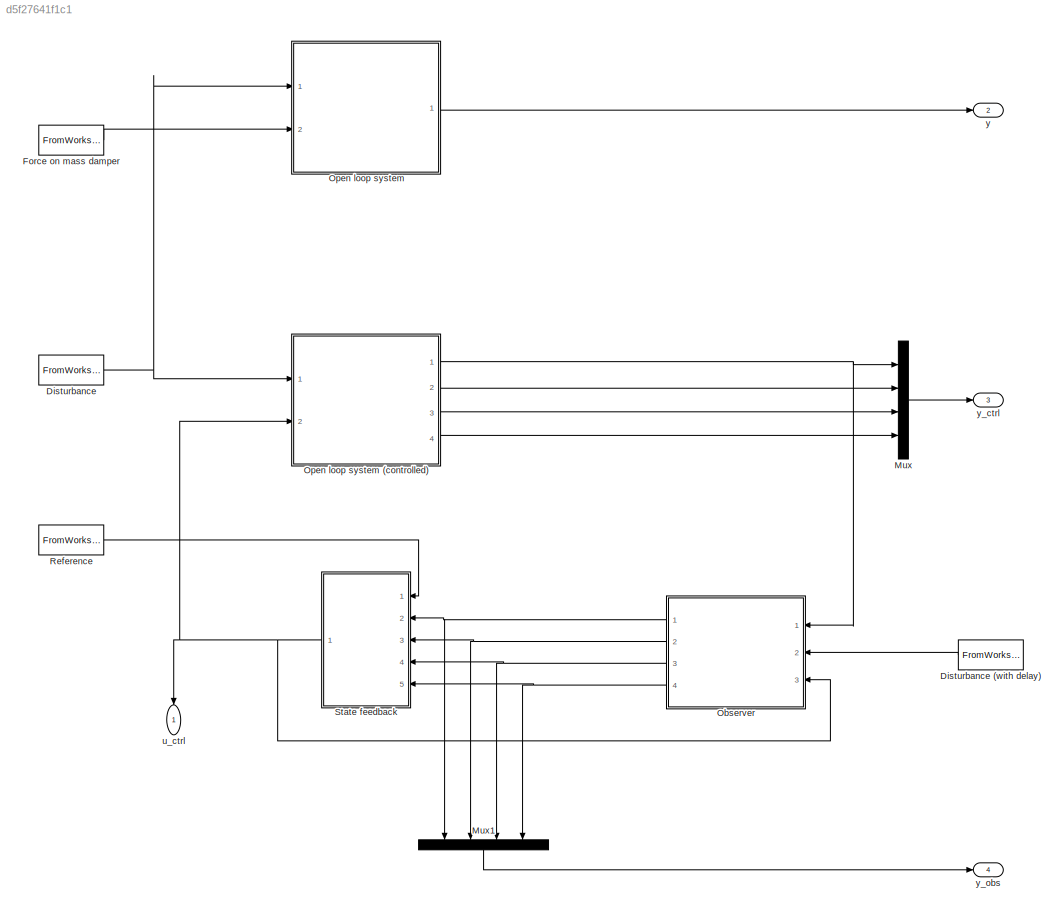
MODEL slx_d5f27641f1c1
KIND model
CONFIG AbsTol = auto
CONFIG EnableMultiTasking = off
CONFIG FixedStep = auto
CONFIG MaxStep = auto
CONFIG MinStep = auto
CONFIG RelTol = 1e-3
CONFIG SampleTimeConstraint = Unconstrained
CONFIG Solver = VariableStepAuto
CONFIG SolverName = VariableStepAuto
CONFIG StartTime = 0.0
CONFIG StopTime = 30.0
BLOCK [FromWorkspace] Disturbance
  SampleTime = 0
  VariableName = d
  ZeroCross = on
BLOCK [FromWorkspace] Disturbance (with delay)
  SampleTime = 0
  VariableName = [d(1:200, 1), zeros(200, 1); d(201:end, 1), d(201:end, 2)]
  ZeroCross = on
BLOCK [FromWorkspace] Force on mass damper
  SampleTime = 0
  VariableName = u
  ZeroCross = on
BLOCK [Mux] Mux
  DisplayOption = bar
  Ports = [4, 1]
BLOCK [Mux] Mux1
  DisplayOption = bar
  Ports = [4, 1]
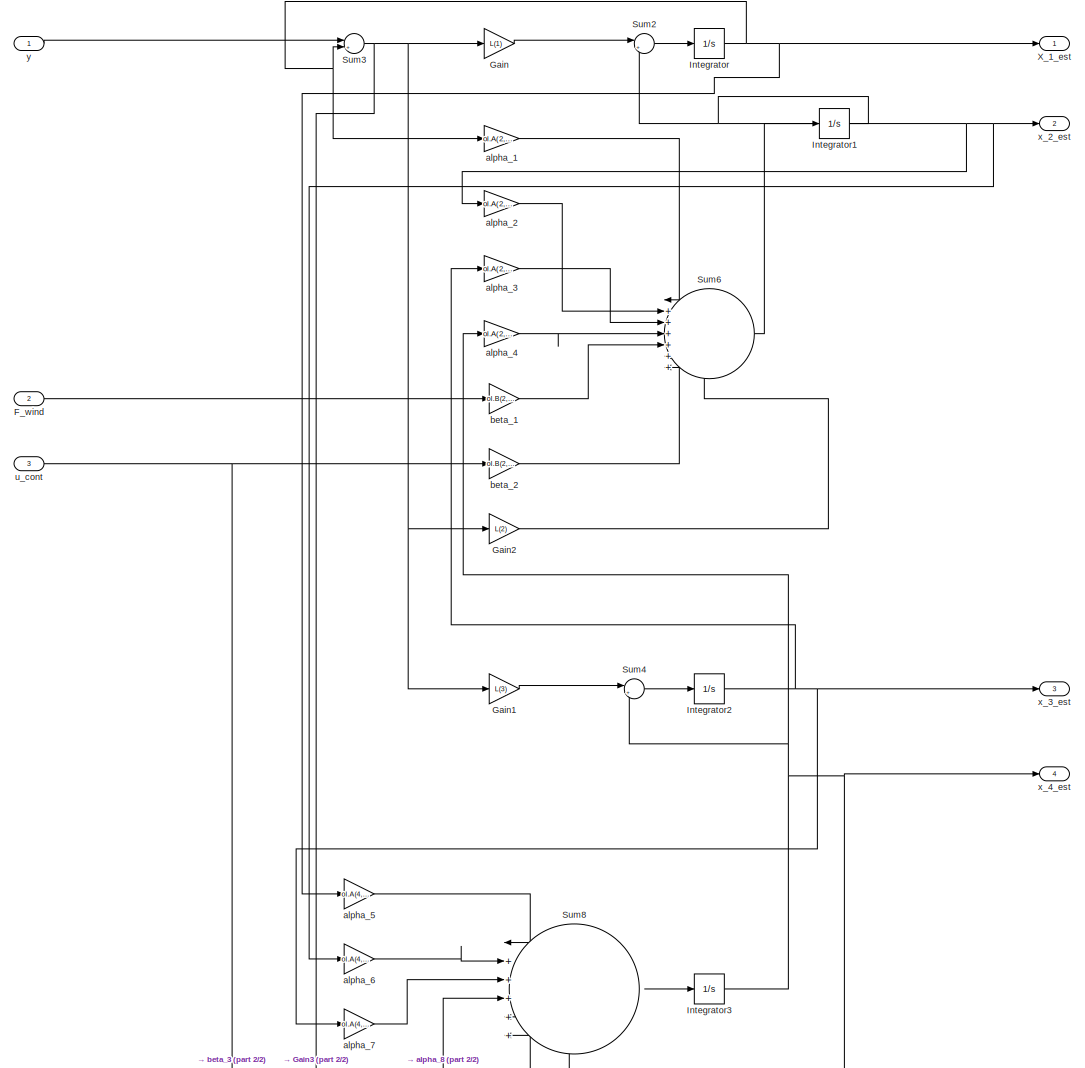
[diagram: Observer - part 1/2, most of the canvas]
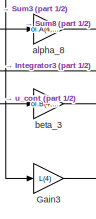
[diagram: Observer - part 2/2, bottom center region]
BLOCK [SubSystem] Observer
  Ports = [3, 4]
  RequestExecContextInheritance = off
BLOCK [Inport] Observer/F_wind
  IconDisplay = Port number
  Port = 2
BLOCK [Gain] Observer/Gain
  Gain = L(1)
  OutDataTypeStr = Inherit: Inherit via internal rule
  ParamDataTypeStr = Inherit: Inherit via internal rule
  SaturateOnIntegerOverflow = off
BLOCK [Gain] Observer/Gain1
  Gain = L(3)
  OutDataTypeStr = Inherit: Inherit via internal rule
  ParamDataTypeStr = Inherit: Inherit via internal rule
  SaturateOnIntegerOverflow = off
BLOCK [Gain] Observer/Gain2
  Gain = L(2)
  OutDataTypeStr = Inherit: Inherit via internal rule
  ParamDataTypeStr = Inherit: Inherit via internal rule
  SaturateOnIntegerOverflow = off
BLOCK [Gain] Observer/Gain3
  Gain = L(4)
  OutDataTypeStr = Inherit: Inherit via internal rule
  ParamDataTypeStr = Inherit: Inherit via internal rule
  SaturateOnIntegerOverflow = off
BLOCK [Integrator] Observer/Integrator
  Ports = [1, 1]
BLOCK [Integrator] Observer/Integrator1
  Ports = [1, 1]
BLOCK [Integrator] Observer/Integrator2
  Ports = [1, 1]
BLOCK [Integrator] Observer/Integrator3
  Ports = [1, 1]
BLOCK [Sum] Observer/Sum2
  IconShape = round
  InputSameDT = off
  Inputs = |++
  OutDataTypeStr = Inherit: Inherit via internal rule
  Ports = [2, 1]
  SaturateOnIntegerOverflow = off
BLOCK [Sum] Observer/Sum3
  IconShape = round
  InputSameDT = off
  Inputs = |+-
  OutDataTypeStr = Inherit: Inherit via internal rule
  Ports = [2, 1]
  SaturateOnIntegerOverflow = off
BLOCK [Sum] Observer/Sum4
  IconShape = round
  InputSameDT = off
  Inputs = |++
  OutDataTypeStr = Inherit: Inherit via internal rule
  Ports = [2, 1]
  SaturateOnIntegerOverflow = off
BLOCK [Sum] Observer/Sum6
  IconShape = round
  InputSameDT = off
  Inputs = |+++++++
  OutDataTypeStr = Inherit: Inherit via internal rule
  Ports = [7, 1]
  SaturateOnIntegerOverflow = off
BLOCK [Sum] Observer/Sum8
  IconShape = round
  InputSameDT = off
  Inputs = |++++++
  OutDataTypeStr = Inherit: Inherit via internal rule
  Ports = [6, 1]
  SaturateOnIntegerOverflow = off
BLOCK [Outport] Observer/X_1_est
  IconDisplay = Port number
BLOCK [Gain] Observer/alpha_1
  Gain = ol.A(2, 1)
  OutDataTypeStr = Inherit: Inherit via internal rule
  ParamDataTypeStr = Inherit: Inherit via internal rule
  SaturateOnIntegerOverflow = off
BLOCK [Gain] Observer/alpha_2
  Gain = ol.A(2, 2)
  OutDataTypeStr = Inherit: Inherit via internal rule
  ParamDataTypeStr = Inherit: Inherit via internal rule
  SaturateOnIntegerOverflow = off
BLOCK [Gain] Observer/alpha_3
  Gain = ol.A(2, 3)
  OutDataTypeStr = Inherit: Inherit via internal rule
  ParamDataTypeStr = Inherit: Inherit via internal rule
  SaturateOnIntegerOverflow = off
BLOCK [Gain] Observer/alpha_4
  Gain = ol.A(2, 4)
  OutDataTypeStr = Inherit: Inherit via internal rule
  ParamDataTypeStr = Inherit: Inherit via internal rule
  SaturateOnIntegerOverflow = off
BLOCK [Gain] Observer/alpha_5
  Gain = ol.A(4, 1)
  OutDataTypeStr = Inherit: Inherit via internal rule
  ParamDataTypeStr = Inherit: Inherit via internal rule
  SaturateOnIntegerOverflow = off
BLOCK [Gain] Observer/alpha_6
  Gain = ol.A(4, 2)
  OutDataTypeStr = Inherit: Inherit via internal rule
  ParamDataTypeStr = Inherit: Inherit via internal rule
  SaturateOnIntegerOverflow = off
BLOCK [Gain] Observer/alpha_7
  Gain = ol.A(4, 3)
  OutDataTypeStr = Inherit: Inherit via internal rule
  ParamDataTypeStr = Inherit: Inherit via internal rule
  SaturateOnIntegerOverflow = off
BLOCK [Gain] Observer/alpha_8
  Gain = ol.A(4, 4)
  OutDataTypeStr = Inherit: Inherit via internal rule
  ParamDataTypeStr = Inherit: Inherit via internal rule
  SaturateOnIntegerOverflow = off
BLOCK [Gain] Observer/beta_1
  Gain = ol.B(2, 1)
  OutDataTypeStr = Inherit: Inherit via internal rule
  ParamDataTypeStr = Inherit: Inherit via internal rule
  SaturateOnIntegerOverflow = off
BLOCK [Gain] Observer/beta_2
  Gain = ol.B(2, 2)
  OutDataTypeStr = Inherit: Inherit via internal rule
  ParamDataTypeStr = Inherit: Inherit via internal rule
  SaturateOnIntegerOverflow = off
BLOCK [Gain] Observer/beta_3
  Gain = ol.B(4, 2)
  OutDataTypeStr = Inherit: Inherit via internal rule
  ParamDataTypeStr = Inherit: Inherit via internal rule
  SaturateOnIntegerOverflow = off
BLOCK [Inport] Observer/u_cont
  IconDisplay = Port number
  Port = 3
BLOCK [Outport] Observer/x_2_est
  IconDisplay = Port number
  Port = 2
BLOCK [Outport] Observer/x_3_est
  IconDisplay = Port number
  Port = 3
BLOCK [Outport] Observer/x_4_est
  IconDisplay = Port number
  Port = 4
BLOCK [Inport] Observer/y
  IconDisplay = Port number
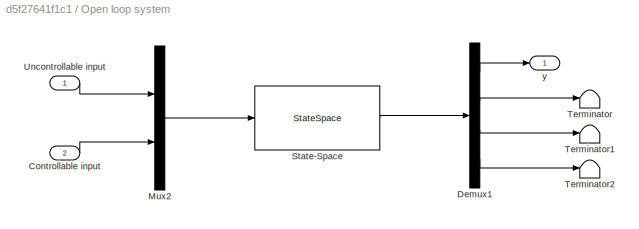
BLOCK [SubSystem] Open loop system
  Ports = [2, 1]
  RequestExecContextInheritance = off
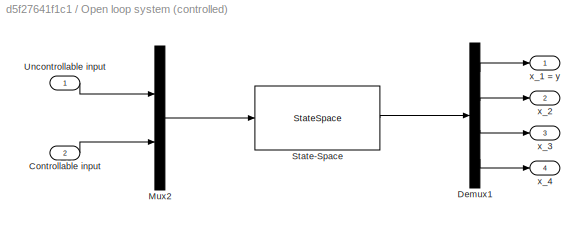
BLOCK [SubSystem] Open loop system (controlled)
  Ports = [2, 4]
  RequestExecContextInheritance = off
BLOCK [Inport] Open loop system (controlled)/Controllable input
  IconDisplay = Port number
  Port = 2
BLOCK [Demux] Open loop system (controlled)/Demux1
  DisplayOption = bar
  Ports = [1, 4]
BLOCK [Mux] Open loop system (controlled)/Mux2
  DisplayOption = bar
  Inputs = 2
  Ports = [2, 1]
BLOCK [StateSpace] Open loop system (controlled)/State-Space
  A = ol.A
  B = ol.B
  C = ol.C
  D = ol.D
  InitialCondition = x0
  Ports = [1, 1]
BLOCK [Inport] Open loop system (controlled)/Uncontrollable input
  IconDisplay = Port number
BLOCK [Outport] Open loop system (controlled)/x_1 = y
  IconDisplay = Port number
BLOCK [Outport] Open loop system (controlled)/x_2
  IconDisplay = Port number
  Port = 2
BLOCK [Outport] Open loop system (controlled)/x_3
  IconDisplay = Port number
  Port = 3
BLOCK [Outport] Open loop system (controlled)/x_4
  IconDisplay = Port number
  Port = 4
BLOCK [Inport] Open loop system/Controllable input
  IconDisplay = Port number
  Port = 2
BLOCK [Demux] Open loop system/Demux1
  DisplayOption = bar
  Ports = [1, 4]
BLOCK [Mux] Open loop system/Mux2
  DisplayOption = bar
  Inputs = 2
  Ports = [2, 1]
BLOCK [StateSpace] Open loop system/State-Space
  A = ol.A
  B = ol.B
  C = ol.C
  D = ol.D
  InitialCondition = x0
  Ports = [1, 1]
BLOCK [Terminator] Open loop system/Terminator
BLOCK [Terminator] Open loop system/Terminator1
BLOCK [Terminator] Open loop system/Terminator2
BLOCK [Inport] Open loop system/Uncontrollable input
  IconDisplay = Port number
BLOCK [Outport] Open loop system/y
  IconDisplay = Port number
BLOCK [FromWorkspace] Reference
  SampleTime = 0
  VariableName = r
  ZeroCross = on
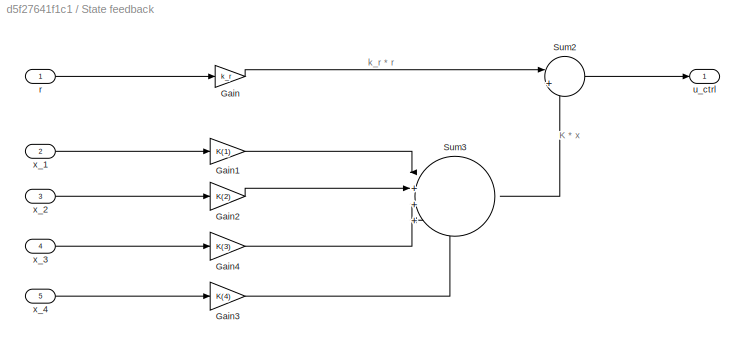
BLOCK [SubSystem] State feedback
  Ports = [5, 1]
  RequestExecContextInheritance = off
BLOCK [Gain] State feedback/Gain
  Gain = k_r
  OutDataTypeStr = Inherit: Inherit via internal rule
  ParamDataTypeStr = Inherit: Inherit via internal rule
  SaturateOnIntegerOverflow = off
BLOCK [Gain] State feedback/Gain1
  Gain = K(1)
  OutDataTypeStr = Inherit: Inherit via internal rule
  ParamDataTypeStr = Inherit: Inherit via internal rule
  SaturateOnIntegerOverflow = off
BLOCK [Gain] State feedback/Gain2
  Gain = K(2)
  OutDataTypeStr = Inherit: Inherit via internal rule
  ParamDataTypeStr = Inherit: Inherit via internal rule
  SaturateOnIntegerOverflow = off
BLOCK [Gain] State feedback/Gain3
  Gain = K(4)
  OutDataTypeStr = Inherit: Inherit via internal rule
  ParamDataTypeStr = Inherit: Inherit via internal rule
  SaturateOnIntegerOverflow = off
BLOCK [Gain] State feedback/Gain4
  Gain = K(3)
  OutDataTypeStr = Inherit: Inherit via internal rule
  ParamDataTypeStr = Inherit: Inherit via internal rule
  SaturateOnIntegerOverflow = off
BLOCK [Sum] State feedback/Sum2
  IconShape = round
  InputSameDT = off
  Inputs = |+-
  OutDataTypeStr = Inherit: Inherit via internal rule
  Ports = [2, 1]
  SaturateOnIntegerOverflow = off
BLOCK [Sum] State feedback/Sum3
  IconShape = round
  InputSameDT = off
  Inputs = |++++
  OutDataTypeStr = Inherit: Inherit via internal rule
  Ports = [4, 1]
  SaturateOnIntegerOverflow = off
BLOCK [Inport] State feedback/r
  IconDisplay = Port number
BLOCK [Outport] State feedback/u_ctrl
  IconDisplay = Port number
BLOCK [Inport] State feedback/x_1
  IconDisplay = Port number
  Port = 2
BLOCK [Inport] State feedback/x_2
  IconDisplay = Port number
  Port = 3
BLOCK [Inport] State feedback/x_3
  IconDisplay = Port number
  Port = 4
BLOCK [Inport] State feedback/x_4
  IconDisplay = Port number
  Port = 5
BLOCK [Outport] u_ctrl
  IconDisplay = Port number
BLOCK [Outport] y
  IconDisplay = Port number
  Port = 2
BLOCK [Outport] y_ctrl
  IconDisplay = Port number
  Port = 3
BLOCK [Outport] y_obs
  IconDisplay = Port number
  Port = 4
ANNOTATION State feedback: K * x
ANNOTATION State feedback: k_r * r
LINE Disturbance (with delay):1 -> Observer:2
NET Disturbance:1 -> Open loop system (controlled):1, Open loop system:1
LINE Force on mass damper:1 -> Open loop system:2
LINE Mux1:1 -> y_obs:1
LINE Mux:1 -> y_ctrl:1
LINE Observer/F_wind:1 -> Observer/beta_1:1
LINE Observer/Gain1:1 -> Observer/Sum4:1
LINE Observer/Gain2:1 -> Observer/Sum6:7
LINE Observer/Gain3:1 -> Observer/Sum8:6
LINE Observer/Gain:1 -> Observer/Sum2:1
NET Observer/Integrator1:1 -> Observer/Sum2:2, Observer/alpha_2:1, Observer/alpha_6:1, Observer/x_2_est:1
NET Observer/Integrator2:1 -> Observer/alpha_3:1, Observer/alpha_7:1, Observer/x_3_est:1
NET Observer/Integrator3:1 -> Observer/Sum4:2, Observer/alpha_4:1, Observer/alpha_8:1, Observer/x_4_est:1
NET Observer/Integrator:1 -> Observer/Sum3:2, Observer/X_1_est:1, Observer/alpha_1:1, Observer/alpha_5:1
LINE Observer/Sum2:1 -> Observer/Integrator:1
NET Observer/Sum3:1 -> Observer/Gain1:1, Observer/Gain2:1, Observer/Gain3:1, Observer/Gain:1
LINE Observer/Sum4:1 -> Observer/Integrator2:1
LINE Observer/Sum6:1 -> Observer/Integrator1:1
LINE Observer/Sum8:1 -> Observer/Integrator3:1
LINE Observer/alpha_1:1 -> Observer/Sum6:1
LINE Observer/alpha_2:1 -> Observer/Sum6:2
LINE Observer/alpha_3:1 -> Observer/Sum6:3
LINE Observer/alpha_4:1 -> Observer/Sum6:4
LINE Observer/alpha_5:1 -> Observer/Sum8:1
LINE Observer/alpha_6:1 -> Observer/Sum8:2
LINE Observer/alpha_7:1 -> Observer/Sum8:3
LINE Observer/alpha_8:1 -> Observer/Sum8:4
LINE Observer/beta_1:1 -> Observer/Sum6:5
LINE Observer/beta_2:1 -> Observer/Sum6:6
LINE Observer/beta_3:1 -> Observer/Sum8:5
NET Observer/u_cont:1 -> Observer/beta_2:1, Observer/beta_3:1
LINE Observer/y:1 -> Observer/Sum3:1
NET Observer:1 -> Mux1:1, State feedback:2
NET Observer:2 -> Mux1:2, State feedback:3
NET Observer:3 -> Mux1:3, State feedback:4
NET Observer:4 -> Mux1:4, State feedback:5
LINE Open loop system (controlled)/Controllable input:1 -> Open loop system (controlled)/Mux2:2
LINE Open loop system (controlled)/Demux1:1 -> Open loop system (controlled)/x_1 = y:1
LINE Open loop system (controlled)/Demux1:2 -> Open loop system (controlled)/x_2:1
LINE Open loop system (controlled)/Demux1:3 -> Open loop system (controlled)/x_3:1
LINE Open loop system (controlled)/Demux1:4 -> Open loop system (controlled)/x_4:1
LINE Open loop system (controlled)/Mux2:1 -> Open loop system (controlled)/State-Space:1
LINE Open loop system (controlled)/State-Space:1 -> Open loop system (controlled)/Demux1:1
LINE Open loop system (controlled)/Uncontrollable input:1 -> Open loop system (controlled)/Mux2:1
NET Open loop system (controlled):1 -> Mux:1, Observer:1
LINE Open loop system (controlled):2 -> Mux:2
LINE Open loop system (controlled):3 -> Mux:3
LINE Open loop system (controlled):4 -> Mux:4
LINE Open loop system/Controllable input:1 -> Open loop system/Mux2:2
LINE Open loop system/Demux1:1 -> Open loop system/y:1
LINE Open loop system/Demux1:2 -> Open loop system/Terminator:1
LINE Open loop system/Demux1:3 -> Open loop system/Terminator1:1
LINE Open loop system/Demux1:4 -> Open loop system/Terminator2:1
LINE Open loop system/Mux2:1 -> Open loop system/State-Space:1
LINE Open loop system/State-Space:1 -> Open loop system/Demux1:1
LINE Open loop system/Uncontrollable input:1 -> Open loop system/Mux2:1
LINE Open loop system:1 -> y:1
LINE Reference:1 -> State feedback:1
LINE State feedback/Gain1:1 -> State feedback/Sum3:1
LINE State feedback/Gain2:1 -> State feedback/Sum3:2
LINE State feedback/Gain3:1 -> State feedback/Sum3:4
LINE State feedback/Gain4:1 -> State feedback/Sum3:3
LINE State feedback/Gain:1 -> State feedback/Sum2:1
LINE State feedback/Sum2:1 -> State feedback/u_ctrl:1
LINE State feedback/Sum3:1 -> State feedback/Sum2:2
LINE State feedback/r:1 -> State feedback/Gain:1
LINE State feedback/x_1:1 -> State feedback/Gain1:1
LINE State feedback/x_2:1 -> State feedback/Gain2:1
LINE State feedback/x_3:1 -> State feedback/Gain4:1
LINE State feedback/x_4:1 -> State feedback/Gain3:1
NET State feedback:1 -> Observer:3, Open loop system (controlled):2, u_ctrl:1
note: NET lines group one-source signal fan-out (src -> all destinations, sorted); 1:1 wires keep LINE
